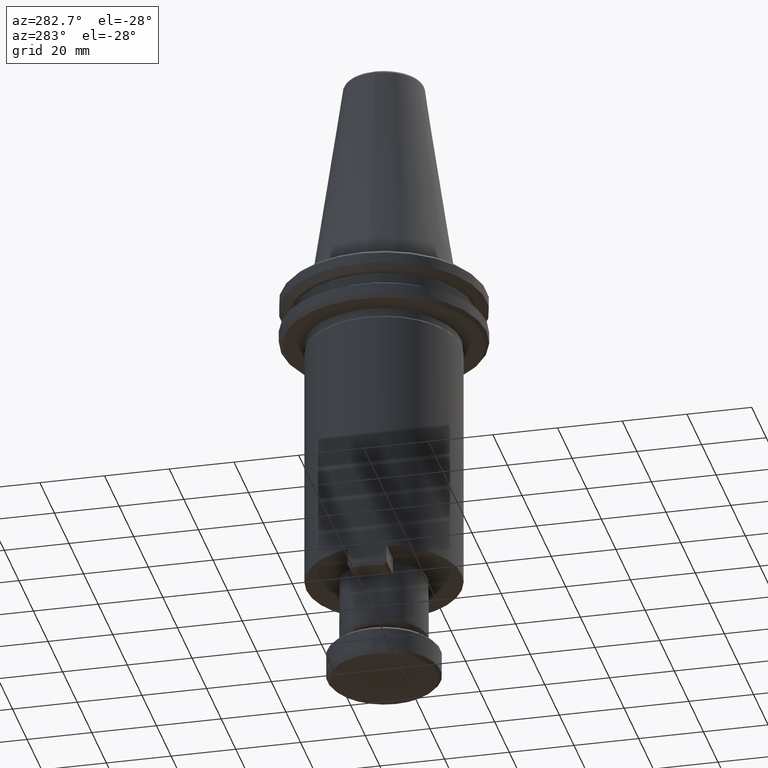
[diagram: clean part render]
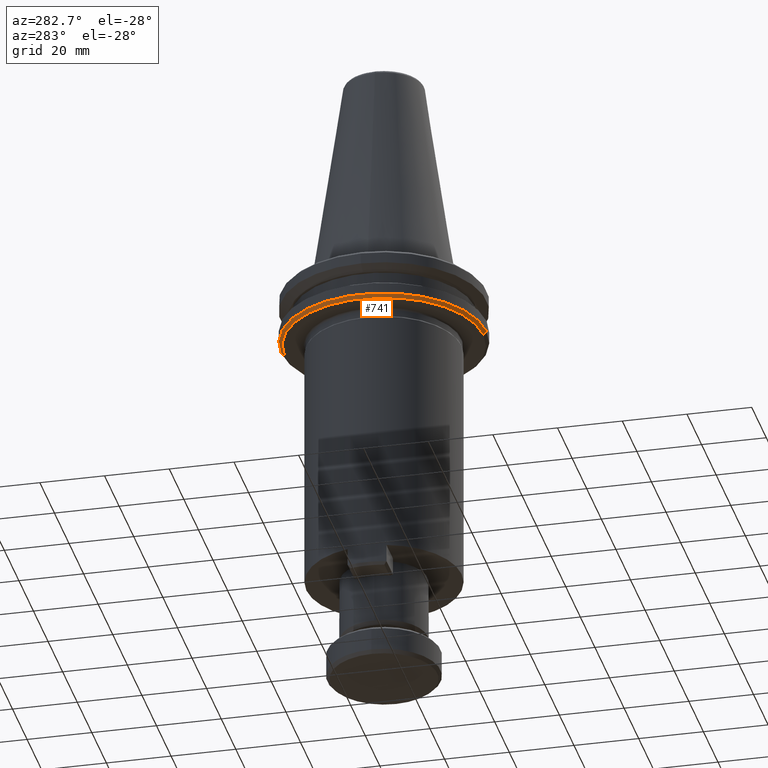
[diagram: same view with one face highlighted and labeled with its STEP entity id]
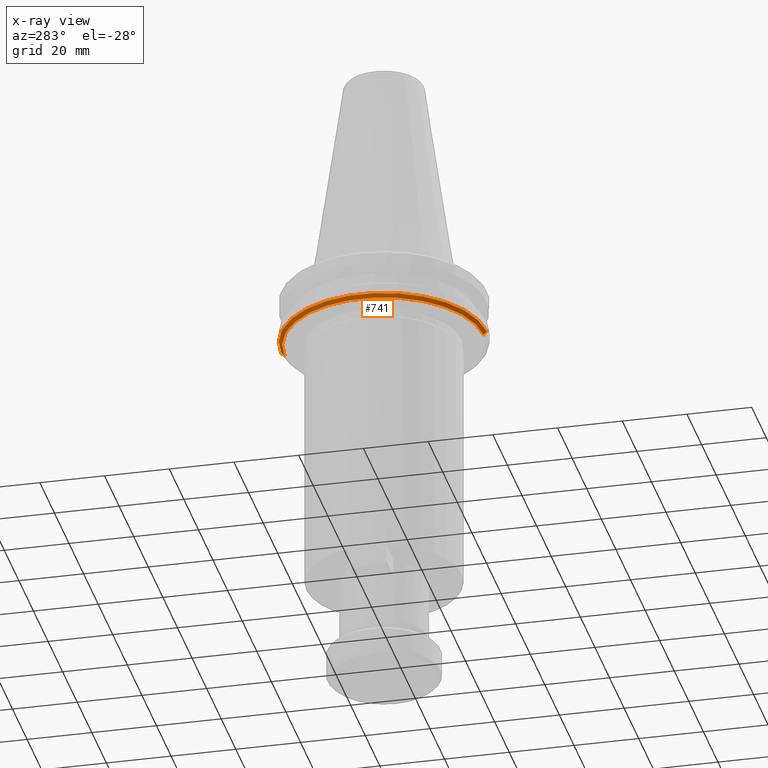
[diagram: x-ray of the same camera — body ghosted, the highlighted face saturated]
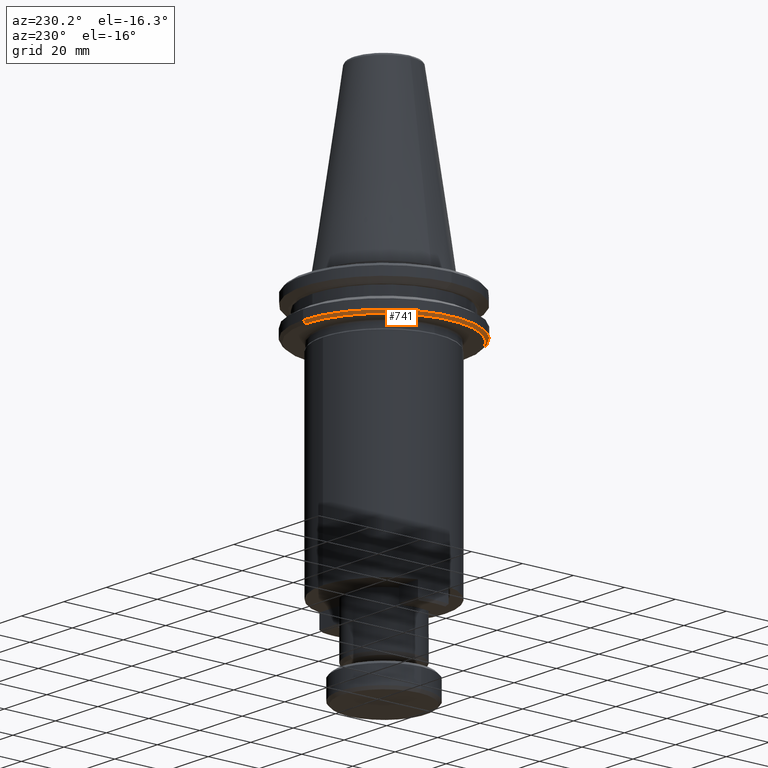
[diagram: same view with one face highlighted and labeled with its STEP entity id]
A machine part, auxiliary view. The second image highlights one B-rep face of the part: STEP entity #741.
The next image is the same camera in x-ray: the body ghosted, the highlighted face saturated — about 0% of this face is hidden behind the body in this view.
A second angle (auxiliary view) of the same face is appended — the face is thin or edge-on in the first view.
In plain terms, the highlighted conical surface has half-angle 45 deg.
Its self-contained STEP definition (entity closure, byte-faithful):
#35 = ORIENTED_EDGE ( 'NONE', *, *, #2776, .F. ) ;
#79 = LINE ( 'NONE', #2292, #2674 ) ;
#124 = AXIS2_PLACEMENT_3D ( 'NONE', #2543, #2573, #773 ) ;
#405 = CONICAL_SURFACE ( 'NONE', #2121, 31.75000000014829700, 0.7853981633974482800 ) ;
#517 = CARTESIAN_POINT ( 'NONE',  ( 71.81983096143052600, 87.85641994208592100, 76.11598642355937700 ) ) ;
#741 = ADVANCED_FACE ( 'NONE', ( #2369 ), #405, .T. ) ;
#773 = DIRECTION ( 'NONE',  ( 0.0000000000000000000, -1.000000000000000000, 0.0000000000000000000 ) ) ;
#782 = CARTESIAN_POINT ( 'NONE',  ( 71.81983096143052600, 87.85641994208592100, 76.11598642370768200 ) ) ;
#850 = CIRCLE ( 'NONE', #124, 30.75000000010500000 ) ;
#931 = CARTESIAN_POINT ( 'NONE',  ( 71.81983096143052600, 119.6064199420859200, 76.11598642355937700 ) ) ;
#1155 = ORIENTED_EDGE ( 'NONE', *, *, #2322, .T. ) ;
#1270 = DIRECTION ( 'NONE',  ( 1.000000000000000000, 0.0000000000000000000, 0.0000000000000000000 ) ) ;
#1461 = CARTESIAN_POINT ( 'NONE',  ( 71.81983096143052600, 56.10641994208591400, 76.11598642355937700 ) ) ;
#1526 = DIRECTION ( 'NONE',  ( -0.0000000000000000000, -0.0000000000000000000, -1.000000000000000000 ) ) ;
#1549 = CARTESIAN_POINT ( 'NONE',  ( 71.81983096143052600, 118.6064199421909300, 75.11598642366438100 ) ) ;
#1618 = DIRECTION ( 'NONE',  ( 0.0000000000000000000, -5.463695987303006200E-017, 1.000000000000000000 ) ) ;
#1624 = VECTOR ( 'NONE', #1896, 1000.000000000000000 ) ;
#1719 = DIRECTION ( 'NONE',  ( 0.0000000000000000000, -1.000000000000000000, 0.0000000000000000000 ) ) ;
#1726 = ORIENTED_EDGE ( 'NONE', *, *, #1962, .T. ) ;
#1797 = EDGE_CURVE ( 'NONE', #2309, #2177, #850, .T. ) ;
#1826 = AXIS2_PLACEMENT_3D ( 'NONE', #517, #1526, #1270 ) ;
#1884 = CARTESIAN_POINT ( 'NONE',  ( 71.81983096143052600, 119.6064199422342100, 76.11598642370768200 ) ) ;
#1896 = DIRECTION ( 'NONE',  ( 8.659560562354931600E-017, 0.7071067811865474600, 0.7071067811865475700 ) ) ;
#1921 = ORIENTED_EDGE ( 'NONE', *, *, #1797, .F. ) ;
#1962 = EDGE_CURVE ( 'NONE', #2309, #2775, #79, .T. ) ;
#2121 = AXIS2_PLACEMENT_3D ( 'NONE', #782, #1618, #1719 ) ;
#2177 = VERTEX_POINT ( 'NONE', #1549 ) ;
#2276 = EDGE_LOOP ( 'NONE', ( #35, #1921, #1726, #1155 ) ) ;
#2286 = DIRECTION ( 'NONE',  ( 0.0000000000000000000, -0.7071067811865474600, 0.7071067811865475700 ) ) ;
#2292 = CARTESIAN_POINT ( 'NONE',  ( 71.81983096143052600, 56.10641994193761700, 76.11598642370768200 ) ) ;
#2309 = VERTEX_POINT ( 'NONE', #2824 ) ;
#2322 = EDGE_CURVE ( 'NONE', #2775, #2412, #2329, .T. ) ;
#2329 = CIRCLE ( 'NONE', #1826, 31.75000000000000000 ) ;
#2369 = FACE_OUTER_BOUND ( 'NONE', #2276, .T. ) ;
#2412 = VERTEX_POINT ( 'NONE', #931 ) ;
#2507 = LINE ( 'NONE', #1884, #1624 ) ;
#2543 = CARTESIAN_POINT ( 'NONE',  ( 71.81983096143052600, 87.85641994208592100, 75.11598642366438100 ) ) ;
#2573 = DIRECTION ( 'NONE',  ( -0.0000000000000000000, 5.463695987303006200E-017, -1.000000000000000000 ) ) ;
#2674 = VECTOR ( 'NONE', #2286, 1000.000000000000000 ) ;
#2775 = VERTEX_POINT ( 'NONE', #1461 ) ;
#2776 = EDGE_CURVE ( 'NONE', #2177, #2412, #2507, .T. ) ;
#2824 = CARTESIAN_POINT ( 'NONE',  ( 71.81983096143052600, 57.10641994198091700, 75.11598642366438100 ) ) ;